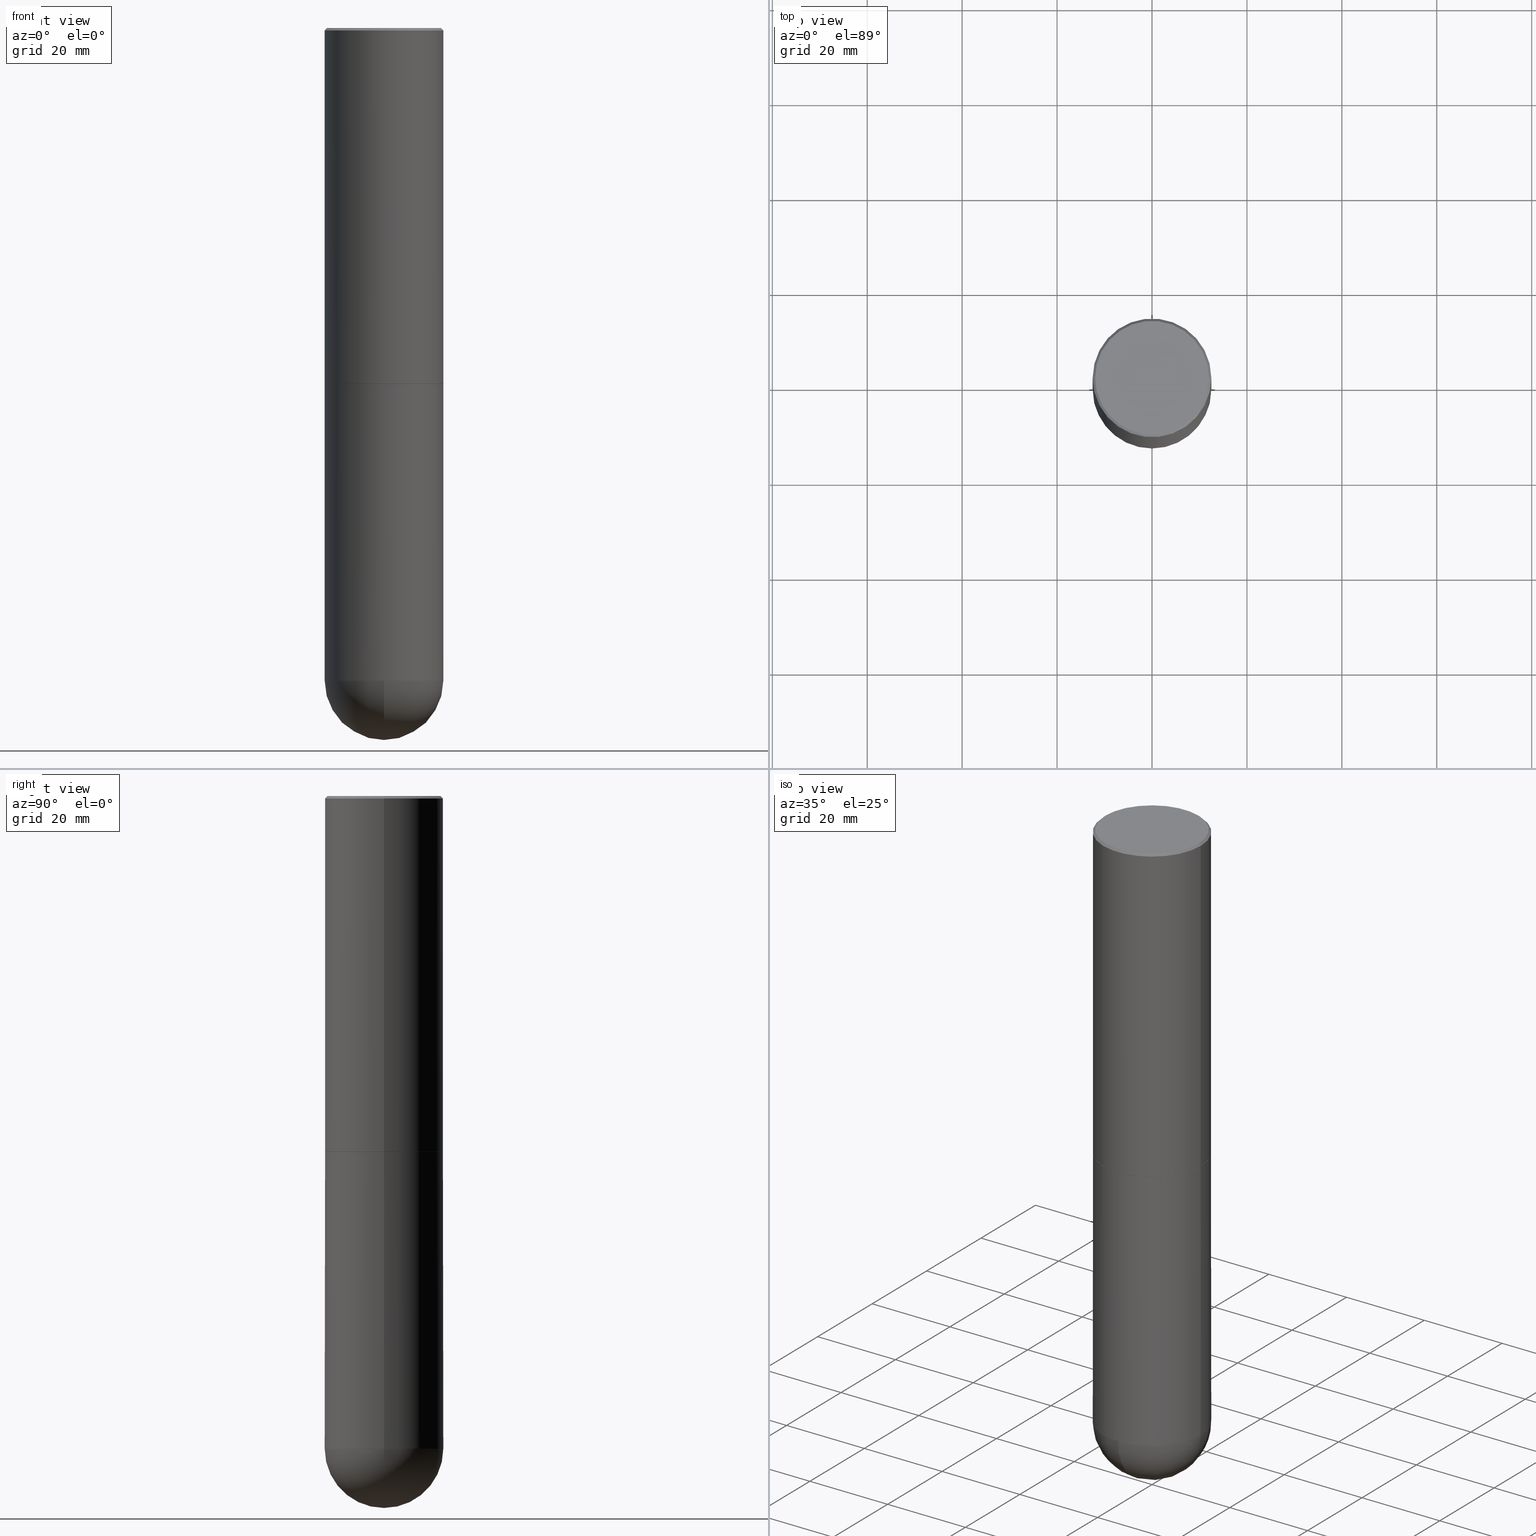
[diagram: canonical four-view strip — front | top / right | iso, engineering-drawing reading convention]
A machine part, canonical four-view strip (front | top / right | iso — engineering-drawing reading convention). The complete STEP part file that produces these views, byte-faithful:
ISO-10303-21;
HEADER;
FILE_DESCRIPTION (( 'STEP AP203' ),
    '1' );
FILE_NAME ('43196.STEP',
    '2024-04-10T11:42:41',
    ( '' ),
    ( '' ),
    'SwSTEP 2.0',
    'SolidWorks 2023',
    '' );
FILE_SCHEMA (( 'CONFIG_CONTROL_DESIGN' ));
ENDSEC;

DATA;
#1 = LOCAL_TIME ( 7, 42, 41.00000000000000000, #400 ) ;
#2 = CARTESIAN_POINT ( 'NONE',  ( 0.4921499999999999764, -1.804161880923764651E-14, -5.413349999999999440 ) ) ;
#3 = CARTESIAN_POINT ( 'NONE',  ( 4.890937612370299433E-31, -6.982962677686328587E-17, -0.02000000000000010797 ) ) ;
#4 = SPHERICAL_SURFACE ( 'NONE', #67, 0.4921500000000000874 ) ;
#5 = ORIENTED_EDGE ( 'NONE', *, *, #186, .F. ) ;
#6 = AXIS2_PLACEMENT_3D ( 'NONE', #256, #188, #91 ) ;
#7 = FACE_OUTER_BOUND ( 'NONE', #245, .T. ) ;
#8 = ORIENTED_EDGE ( 'NONE', *, *, #94, .F. ) ;
#9 = EDGE_CURVE ( 'NONE', #215, #34, #157, .T. ) ;
#10 = CARTESIAN_POINT ( 'NONE',  ( 0.4921499999999999764, -1.374596203102545079E-14, -2.952700000000000102 ) ) ;
#11 = ORIENTED_EDGE ( 'NONE', *, *, #60, .T. ) ;
#12 = APPROVAL_STATUS ( 'not_yet_approved' ) ;
#13 = CARTESIAN_POINT ( 'NONE',  ( -3.496936074043201946E-15, -0.4921500000000192387, -5.413349999999997664 ) ) ;
#14 = AXIS2_PLACEMENT_3D ( 'NONE', #103, #308, #282 ) ;
#15 = DIRECTION ( 'NONE',  ( 0.000000000000000000, 0.000000000000000000, 1.000000000000000000 ) ) ;
#16 = DIRECTION ( 'NONE',  ( -1.000000000000000000, 6.982962677686265922E-15, -4.876176775795935793E-29 ) ) ;
#17 = DIRECTION ( 'NONE',  ( 1.000000000000000000, -6.982962677686266711E-15, 4.875605319575679544E-29 ) ) ;
#18 = DIRECTION ( 'NONE',  ( -2.445468806185136597E-29, 3.491481338843145583E-15, 1.000000000000000000 ) ) ;
#19 = ORIENTED_EDGE ( 'NONE', *, *, #9, .F. ) ;
#20 = EDGE_CURVE ( 'NONE', #111, #230, #24, .T. ) ;
#21 = CARTESIAN_POINT ( 'NONE',  ( 7.220735744022853640E-29, -1.030929694920215659E-14, -2.952700000000000546 ) ) ;
#22 = ORIENTED_EDGE ( 'NONE', *, *, #228, .T. ) ;
#23 = DATE_AND_TIME ( #236, #158 ) ;
#24 = CIRCLE ( 'NONE', #196, 0.4921500000000000319 ) ;
#25 = AXIS2_PLACEMENT_3D ( 'NONE', #310, #15, #144 ) ;
#26 = ORIENTED_EDGE ( 'NONE', *, *, #186, .T. ) ;
#27 = PRODUCT_RELATED_PRODUCT_CATEGORY ( 'detail', '', ( #266 ) ) ;
#28 = EDGE_CURVE ( 'NONE', #48, #238, #379, .T. ) ;
#29 = ORIENTED_EDGE ( 'NONE', *, *, #168, .F. ) ;
#30 = DIRECTION ( 'NONE',  ( -1.000000000000000000, 7.105427357601001070E-15, -4.926315508542082329E-29 ) ) ;
#31 = AXIS2_PLACEMENT_3D ( 'NONE', #101, #38, #319 ) ;
#32 = APPROVAL_PERSON_ORGANIZATION ( #216, #93, #368 ) ;
#33 = DIRECTION ( 'NONE',  ( 1.000000000000000000, -6.982962677686266711E-15, 4.876176775795935232E-29 ) ) ;
#34 = VERTEX_POINT ( 'NONE', #176 ) ;
#35 = DIRECTION ( 'NONE',  ( 6.982962677686266711E-15, 1.000000000000000000, -4.440675393541420887E-15 ) ) ;
#36 = AXIS2_PLACEMENT_3D ( 'NONE', #333, #389, #33 ) ;
#37 = PRODUCT_DEFINITION_FORMATION_WITH_SPECIFIED_SOURCE ( 'ANY', '', #266, .NOT_KNOWN. ) ;
#38 = DIRECTION ( 'NONE',  ( -2.445468806185136597E-29, 3.491481338843145583E-15, 1.000000000000000000 ) ) ;
#39 = VERTEX_POINT ( 'NONE', #43 ) ;
#40 = CARTESIAN_POINT ( 'NONE',  ( -0.4921499999999999764, -1.110801765337101547E-14, -2.952700000000000102 ) ) ;
#41 = COORDINATED_UNIVERSAL_TIME_OFFSET ( 5, 0, .BEHIND. ) ;
#42 = DIRECTION ( 'NONE',  ( 1.000000000000000000, -6.982962677686265922E-15, 4.876176775795935793E-29 ) ) ;
#43 = CARTESIAN_POINT ( 'NONE',  ( -0.4921499999999999764, -1.110801765337101862E-14, -5.413349999999999440 ) ) ;
#44 = CLOSED_SHELL ( 'NONE', ( #340, #367, #325, #292, #83 ) ) ;
#45 = DIRECTION ( 'NONE',  ( 1.000000000000000000, -6.982962677686265922E-15, 0.000000000000000000 ) ) ;
#46 = ORIENTED_EDGE ( 'NONE', *, *, #51, .T. ) ;
#47 = FACE_OUTER_BOUND ( 'NONE', #411, .T. ) ;
#48 = VERTEX_POINT ( 'NONE', #50 ) ;
#49 = CALENDAR_DATE ( 2024, 10, 4 ) ;
#50 = CARTESIAN_POINT ( 'NONE',  ( 0.4911499999999999755, -1.373897906834776478E-14, -2.952700000000000546 ) ) ;
#51 = EDGE_CURVE ( 'NONE', #76, #113, #317, .T. ) ;
#52 = APPROVAL_ROLE ( '' ) ;
#53 = AXIS2_PLACEMENT_3D ( 'NONE', #316, #272, #110 ) ;
#54 = DIRECTION ( 'NONE',  ( 0.7071067811865474617, -2.468850131082256666E-15, 0.7071067811865474617 ) ) ;
#55 = AXIS2_PLACEMENT_3D ( 'NONE', #295, #95, #385 ) ;
#56 = MANIFOLD_SOLID_BREP ( 'Body-Move/Copy2[2]', #359 ) ;
#57 = LINE ( 'NONE', #189, #332 ) ;
#58 = CARTESIAN_POINT ( 'NONE',  ( 7.220735744022852519E-29, -1.030929694920215502E-14, -2.952700000000000102 ) ) ;
#59 = CC_DESIGN_PERSON_AND_ORGANIZATION_ASSIGNMENT ( #371, #278, ( #328 ) ) ;
#60 = EDGE_CURVE ( 'NONE', #76, #48, #124, .T. ) ;
#61 = DIRECTION ( 'NONE',  ( -2.445468806185136597E-29, 3.491481338843145583E-15, 1.000000000000000000 ) ) ;
#62 = AXIS2_PLACEMENT_3D ( 'NONE', #375, #365, #344 ) ;
#63 = ORGANIZATION ( 'UNSPECIFIED', 'UNSPECIFIED', '' ) ;
#64 = DIRECTION ( 'NONE',  ( 1.000000000000000000, -6.982962677686265922E-15, 0.000000000000000000 ) ) ;
#65 = FACE_OUTER_BOUND ( 'NONE', #98, .T. ) ;
#66 = CARTESIAN_POINT ( 'NONE',  ( 7.218290275216666916E-29, -1.030580546786331359E-14, -2.951700000000000212 ) ) ;
#67 = AXIS2_PLACEMENT_3D ( 'NONE', #128, #335, #35 ) ;
#68 = UNCERTAINTY_MEASURE_WITH_UNIT (LENGTH_MEASURE( 1.000000000000000082E-05 ), #204, 'distance_accuracy_value', 'NONE');
#69 = CC_DESIGN_SECURITY_CLASSIFICATION ( #399, ( #37 ) ) ;
#70 = ORIENTED_EDGE ( 'NONE', *, *, #51, .F. ) ;
#71 = CARTESIAN_POINT ( 'NONE',  ( -0.4921500000000003094, -1.690881473276752982E-15, -2.951700000000000212 ) ) ;
#72 = ORIENTED_EDGE ( 'NONE', *, *, #329, .F. ) ;
#73 = EDGE_CURVE ( 'NONE', #230, #111, #77, .T. ) ;
#74 = DATE_AND_TIME ( #49, #90 ) ;
#75 = DIRECTION ( 'NONE',  ( -2.445468806185136877E-29, 3.491481338843145188E-15, 1.000000000000000000 ) ) ;
#76 = VERTEX_POINT ( 'NONE', #135 ) ;
#77 = CIRCLE ( 'NONE', #336, 0.4921500000000000319 ) ;
#78 = APPROVAL_STATUS ( 'not_yet_approved' ) ;
#79 = DIRECTION ( 'NONE',  ( -2.445468806185136597E-29, 3.491481338843145583E-15, 1.000000000000000000 ) ) ;
#80 = VERTEX_POINT ( 'NONE', #40 ) ;
#81 = PERSON_AND_ORGANIZATION_ROLE ( 'design_supplier' ) ;
#82 = CARTESIAN_POINT ( 'NONE',  ( 0.4911499999999999755, -1.373897906834776478E-14, -2.952700000000000546 ) ) ;
#83 = ADVANCED_FACE ( 'NONE', ( #237 ), #200, .T. ) ;
#84 = DATE_TIME_ROLE ( 'classification_date' ) ;
#85 = DIRECTION ( 'NONE',  ( 1.000000000000000000, -6.982962677686265922E-15, 0.000000000000000000 ) ) ;
#86 = AXIS2_PLACEMENT_3D ( 'NONE', #58, #61, #64 ) ;
#87 = CARTESIAN_POINT ( 'NONE',  ( -1.461391980069309186E-45, 2.086480438532628324E-31, 5.975917486140581337E-17 ) ) ;
#88 = CARTESIAN_POINT ( 'NONE',  ( 1.323817856196230713E-28, -1.890061050562653856E-14, -5.413349999999999440 ) ) ;
#89 = AXIS2_PLACEMENT_3D ( 'NONE', #299, #30, #362 ) ;
#90 = LOCAL_TIME ( 7, 42, 41.00000000000000000, #274 ) ;
#91 = DIRECTION ( 'NONE',  ( 1.000000000000000000, -6.982962677686265922E-15, 0.000000000000000000 ) ) ;
#92 = CARTESIAN_POINT ( 'NONE',  ( 0.4921500000000000319, -3.446223716380123138E-15, -0.02000000000000010797 ) ) ;
#93 = APPROVAL ( #12, 'UNSPECIFIED' ) ;
#94 = EDGE_CURVE ( 'NONE', #115, #250, #191, .T. ) ;
#95 = DIRECTION ( 'NONE',  ( -2.445468806185136597E-29, 3.491481338843145583E-15, 1.000000000000000000 ) ) ;
#96 = FACE_OUTER_BOUND ( 'NONE', #302, .T. ) ;
#97 = DIRECTION ( 'NONE',  ( 1.000000000000000000, -6.982962677686265922E-15, 0.000000000000000000 ) ) ;
#98 = EDGE_LOOP ( 'NONE', ( #138, #352, #133, #262, #306 ) ) ;
#99 = CIRCLE ( 'NONE', #6, 0.4921499999999999764 ) ;
#100 = FACE_OUTER_BOUND ( 'NONE', #309, .T. ) ;
#101 = CARTESIAN_POINT ( 'NONE',  ( 7.220735744022853640E-29, -1.030929694920215659E-14, -2.952700000000000546 ) ) ;
#102 = PRODUCT_DEFINITION_SHAPE ( 'NONE', 'NONE',  #328 ) ;
#103 = CARTESIAN_POINT ( 'NONE',  ( 0.000000000000000000, 0.000000000000000000, 0.000000000000000000 ) ) ;
#104 = VECTOR ( 'NONE', #75, 39.37007874015748143 ) ;
#105 = APPROVAL_PERSON_ORGANIZATION ( #350, #155, #248 ) ;
#106 = FACE_OUTER_BOUND ( 'NONE', #276, .T. ) ;
#107 = EDGE_CURVE ( 'NONE', #215, #111, #147, .T. ) ;
#108 = CARTESIAN_POINT ( 'NONE',  ( -0.4921500000000000319, 3.366835455046432873E-15, -0.02000000000000010797 ) ) ;
#109 = ORIENTED_EDGE ( 'NONE', *, *, #219, .F. ) ;
#110 = DIRECTION ( 'NONE',  ( 1.000000000000000000, -6.982962677686264344E-15, 0.000000000000000000 ) ) ;
#111 = VERTEX_POINT ( 'NONE', #108 ) ;
#112 = AXIS2_PLACEMENT_3D ( 'NONE', #88, #223, #360 ) ;
#113 = VERTEX_POINT ( 'NONE', #71 ) ;
#114 =( NAMED_UNIT ( * ) SI_UNIT ( $, .STERADIAN. ) SOLID_ANGLE_UNIT ( ) );
#115 = VERTEX_POINT ( 'NONE', #13 ) ;
#116 = SHAPE_DEFINITION_REPRESENTATION ( #102, #307 ) ;
#117 = ORIENTED_EDGE ( 'NONE', *, *, #73, .T. ) ;
#118 = APPROVAL_DATE_TIME ( #152, #93 ) ;
#119 = LOCAL_TIME ( 7, 42, 41.00000000000000000, #243 ) ;
#120 = ADVANCED_FACE ( 'NONE', ( #311 ), #222, .T. ) ;
#121 = CARTESIAN_POINT ( 'NONE',  ( 0.4921500000000000319, -3.446223716380123138E-15, -0.02000000000000010797 ) ) ;
#122 = CARTESIAN_POINT ( 'NONE',  ( -0.4721499999999999031, 3.331920641658001618E-15, 5.975917486138264058E-17 ) ) ;
#123 = ADVANCED_FACE ( 'NONE', ( #134 ), #165, .F. ) ;
#124 = CIRCLE ( 'NONE', #264, 0.4911499999999999755 ) ;
#125 = AXIS2_PLACEMENT_3D ( 'NONE', #268, #225, #356 ) ;
#126 = DIRECTION ( 'NONE',  ( 0.7071067811865469066, -7.319954787623254468E-15, -0.7071067811865482389 ) ) ;
#127 = DIRECTION ( 'NONE',  ( 1.000000000000000000, -6.982962677686265922E-15, 4.876176775795935793E-29 ) ) ;
#128 = CARTESIAN_POINT ( 'NONE',  ( 1.290705878404842200E-28, -1.937479287376659043E-14, -5.413349999999999440 ) ) ;
#129 = ORIENTED_EDGE ( 'NONE', *, *, #242, .F. ) ;
#130 = CONICAL_SURFACE ( 'NONE', #376, 0.4911499999999999755, 0.7853981633974482790 ) ;
#131 = EDGE_CURVE ( 'NONE', #48, #76, #234, .T. ) ;
#132 = CARTESIAN_POINT ( 'NONE',  ( 3.436665081823426728E-15, 0.4921499999999808250, -5.413350000000002105 ) ) ;
#133 = ORIENTED_EDGE ( 'NONE', *, *, #354, .F. ) ;
#134 = FACE_OUTER_BOUND ( 'NONE', #370, .T. ) ;
#135 = CARTESIAN_POINT ( 'NONE',  ( -0.4911499999999999755, -6.814167848168200725E-15, -2.952700000000000546 ) ) ;
#136 = CC_DESIGN_DATE_AND_TIME_ASSIGNMENT ( #74, #84, ( #399 ) ) ;
#137 = ADVANCED_FACE ( 'NONE', ( #244 ), #394, .T. ) ;
#138 = ORIENTED_EDGE ( 'NONE', *, *, #242, .T. ) ;
#139 = AXIS2_PLACEMENT_3D ( 'NONE', #205, #18, #45 ) ;
#140 = APPLICATION_PROTOCOL_DEFINITION ( 'international standard', 'config_control_design', 1994, #142 ) ;
#141 = DIRECTION ( 'NONE',  ( 1.000000000000000000, -6.982962677686265922E-15, 4.876176775795935793E-29 ) ) ;
#142 = APPLICATION_CONTEXT ( 'configuration controlled 3d designs of mechanical parts and assemblies' ) ;
#143 = ORIENTED_EDGE ( 'NONE', *, *, #361, .F. ) ;
#144 = DIRECTION ( 'NONE',  ( 1.000000000000000000, 0.000000000000000000, 0.000000000000000000 ) ) ;
#145 = DIRECTION ( 'NONE',  ( -2.445468806185136597E-29, 3.491481338843145583E-15, 1.000000000000000000 ) ) ;
#146 = DIRECTION ( 'NONE',  ( -2.445468806185136597E-29, 3.491481338843145583E-15, 1.000000000000000000 ) ) ;
#147 = LINE ( 'NONE', #175, #291 ) ;
#148 = EDGE_LOOP ( 'NONE', ( #166, #377 ) ) ;
#149 = AXIS2_PLACEMENT_3D ( 'NONE', #226, #357, #227 ) ;
#150 = PERSON_AND_ORGANIZATION ( #267, #63 ) ;
#151 = ORIENTED_EDGE ( 'NONE', *, *, #219, .T. ) ;
#152 = DATE_AND_TIME ( #185, #1 ) ;
#153 = ORIENTED_EDGE ( 'NONE', *, *, #20, .F. ) ;
#154 = EDGE_CURVE ( 'NONE', #34, #215, #364, .T. ) ;
#155 = APPROVAL ( #78, 'UNSPECIFIED' ) ;
#156 = DIRECTION ( 'NONE',  ( -2.445468806185136597E-29, 3.491481338843145583E-15, 1.000000000000000000 ) ) ;
#157 = CIRCLE ( 'NONE', #174, 0.4721499999999999031 ) ;
#158 = LOCAL_TIME ( 7, 42, 41.00000000000000000, #41 ) ;
#159 = DIRECTION ( 'NONE',  ( -1.000000000000000000, 6.982962677686265922E-15, 0.000000000000000000 ) ) ;
#160 = ORIENTED_EDGE ( 'NONE', *, *, #412, .T. ) ;
#161 = LINE ( 'NONE', #92, #355 ) ;
#162 = ADVANCED_FACE ( 'NONE', ( #106 ), #369, .F. ) ;
#163 = CARTESIAN_POINT ( 'NONE',  ( 0.4921499999999999764, -3.436665081823295777E-15, 2.399810400207969603E-29 ) ) ;
#164 = CIRCLE ( 'NONE', #62, 0.4921500000000000874 ) ;
#165 = PLANE ( 'NONE',  #331 ) ;
#166 = ORIENTED_EDGE ( 'NONE', *, *, #354, .T. ) ;
#167 = CC_DESIGN_PERSON_AND_ORGANIZATION_ASSIGNMENT ( #214, #271, ( #399 ) ) ;
#168 = EDGE_CURVE ( 'NONE', #250, #351, #187, .T. ) ;
#169 = CARTESIAN_POINT ( 'NONE',  ( 0.000000000000000000, 0.000000000000000000, 0.000000000000000000 ) ) ;
#170 = ORIENTED_EDGE ( 'NONE', *, *, #192, .F. ) ;
#171 =( NAMED_UNIT ( * ) PLANE_ANGLE_UNIT ( ) SI_UNIT ( $, .RADIAN. ) );
#172 = DIRECTION ( 'NONE',  ( -2.445468806185136597E-29, 3.491481338843145583E-15, 1.000000000000000000 ) ) ;
#173 = EDGE_LOOP ( 'NONE', ( #170, #343, #109, #129 ) ) ;
#174 = AXIS2_PLACEMENT_3D ( 'NONE', #87, #247, #17 ) ;
#175 = CARTESIAN_POINT ( 'NONE',  ( -0.4921500000000000319, 3.366835455046432873E-15, -0.02000000000000010797 ) ) ;
#176 = CARTESIAN_POINT ( 'NONE',  ( 0.4721499999999999031, -3.342703923013975369E-15, 5.975917486142903546E-17 ) ) ;
#177 = PERSON_AND_ORGANIZATION ( #267, #63 ) ;
#178 = DIRECTION ( 'NONE',  ( -2.445468806185136597E-29, 3.491481338843145583E-15, 1.000000000000000000 ) ) ;
#179 = ORIENTED_EDGE ( 'NONE', *, *, #28, .T. ) ;
#180 = PERSON_AND_ORGANIZATION_ROLE ( 'design_owner' ) ;
#181 = VERTEX_POINT ( 'NONE', #10 ) ;
#182 = AXIS2_PLACEMENT_3D ( 'NONE', #305, #398, #404 ) ;
#183 = CONICAL_SURFACE ( 'NONE', #407, 0.4921500000000000319, 0.7853981633974473908 ) ;
#184 = CARTESIAN_POINT ( 'NONE',  ( 7.220735744022853640E-29, -1.030929694920215659E-14, -2.952700000000000546 ) ) ;
#185 = CALENDAR_DATE ( 2024, 10, 4 ) ;
#186 = EDGE_CURVE ( 'NONE', #238, #230, #233, .T. ) ;
#187 = CIRCLE ( 'NONE', #294, 0.4921499999999999764 ) ;
#188 = DIRECTION ( 'NONE',  ( -2.445468806185136597E-29, 3.491481338843145583E-15, 1.000000000000000000 ) ) ;
#189 = CARTESIAN_POINT ( 'NONE',  ( -0.4921500000000001984, 3.496936074043334475E-15, -2.420853904668952630E-29 ) ) ;
#190 = DIRECTION ( 'NONE',  ( -1.000000000000000000, 6.982962677686265922E-15, -4.876176775795935793E-29 ) ) ;
#191 = CIRCLE ( 'NONE', #139, 0.4921499999999999764 ) ;
#192 = EDGE_CURVE ( 'NONE', #206, #351, #164, .T. ) ;
#193 = DIRECTION ( 'NONE',  ( -2.445468806185136877E-29, 3.491481338843145188E-15, 1.000000000000000000 ) ) ;
#194 = CARTESIAN_POINT ( 'NONE',  ( 7.220735744022852519E-29, -1.030929694920215502E-14, -2.952700000000000102 ) ) ;
#195 = DIRECTION ( 'NONE',  ( -2.445468806185136597E-29, 3.491481338843145583E-15, 1.000000000000000000 ) ) ;
#196 = AXIS2_PLACEMENT_3D ( 'NONE', #346, #146, #85 ) ;
#197 = ORIENTED_EDGE ( 'NONE', *, *, #60, .F. ) ;
#198 = VECTOR ( 'NONE', #193, 39.37007874015748143 ) ;
#199 = EDGE_CURVE ( 'NONE', #113, #238, #312, .T. ) ;
#200 = CYLINDRICAL_SURFACE ( 'NONE', #207, 0.4921499999999999764 ) ;
#201 = CARTESIAN_POINT ( 'NONE',  ( 4.890937612370299433E-31, -6.982962677686328587E-17, -0.02000000000000010797 ) ) ;
#202 = ORIENTED_EDGE ( 'NONE', *, *, #199, .T. ) ;
#203 = APPLICATION_CONTEXT ( 'configuration controlled 3d designs of mechanical parts and assemblies' ) ;
#204 =( CONVERSION_BASED_UNIT ( 'INCH', #341 ) LENGTH_UNIT ( ) NAMED_UNIT ( #221 ) );
#205 = CARTESIAN_POINT ( 'NONE',  ( 1.323817856196230713E-28, -1.890061050562653856E-14, -5.413349999999999440 ) ) ;
#206 = VERTEX_POINT ( 'NONE', #348 ) ;
#207 = AXIS2_PLACEMENT_3D ( 'NONE', #169, #178, #42 ) ;
#208 = PERSON_AND_ORGANIZATION_ROLE ( 'creator' ) ;
#209 = CC_DESIGN_APPROVAL ( #93, ( #399 ) ) ;
#210 = DIRECTION ( 'NONE',  ( 1.000000000000000000, -6.982962677686265922E-15, 0.000000000000000000 ) ) ;
#211 = MANIFOLD_SOLID_BREP ( 'Body-Move/Copy2[1]', #44 ) ;
#212 = ADVANCED_FACE ( 'NONE', ( #47 ), #130, .T. ) ;
#213 = ORIENTED_EDGE ( 'NONE', *, *, #28, .F. ) ;
#214 = PERSON_AND_ORGANIZATION ( #267, #63 ) ;
#215 = VERTEX_POINT ( 'NONE', #122 ) ;
#216 = PERSON_AND_ORGANIZATION ( #267, #63 ) ;
#217 = ORIENTED_EDGE ( 'NONE', *, *, #192, .T. ) ;
#218 = CC_DESIGN_PERSON_AND_ORGANIZATION_ASSIGNMENT ( #177, #81, ( #37 ) ) ;
#219 = EDGE_CURVE ( 'NONE', #39, #115, #99, .T. ) ;
#220 = AXIS2_PLACEMENT_3D ( 'NONE', #300, #156, #127 ) ;
#221 = DIMENSIONAL_EXPONENTS ( 1.000000000000000000, 0.000000000000000000, 0.000000000000000000, 0.000000000000000000, 0.000000000000000000, 0.000000000000000000, 0.000000000000000000 ) ;
#222 = CONICAL_SURFACE ( 'NONE', #31, 0.4911499999999999755, 0.7853981633974482790 ) ;
#223 = DIRECTION ( 'NONE',  ( -2.445468806185136597E-29, 3.491481338843145583E-15, 1.000000000000000000 ) ) ;
#224 =( GEOMETRIC_REPRESENTATION_CONTEXT ( 3 ) GLOBAL_UNCERTAINTY_ASSIGNED_CONTEXT ( ( #68 ) ) GLOBAL_UNIT_ASSIGNED_CONTEXT ( ( #204, #171, #114 ) ) REPRESENTATION_CONTEXT ( 'NONE', 'WORKASPACE' ) );
#225 = DIRECTION ( 'NONE',  ( 2.445468806185136597E-29, -3.491481338843145583E-15, -1.000000000000000000 ) ) ;
#226 = CARTESIAN_POINT ( 'NONE',  ( 1.290705878404842200E-28, -1.937479287376659043E-14, -5.413349999999999440 ) ) ;
#227 = DIRECTION ( 'NONE',  ( 6.982962677686266711E-15, 1.000000000000000000, -4.440675393541420887E-15 ) ) ;
#228 = EDGE_CURVE ( 'NONE', #238, #113, #246, .T. ) ;
#229 = CARTESIAN_POINT ( 'NONE',  ( -0.4921499999999999764, 3.496936074043332897E-15, -2.420853904668951509E-29 ) ) ;
#230 = VERTEX_POINT ( 'NONE', #121 ) ;
#231 = DIRECTION ( 'NONE',  ( 2.438088387897960049E-29, -3.491481338843145188E-15, -1.000000000000000000 ) ) ;
#232 = DIRECTION ( 'NONE',  ( -2.438088387897960049E-29, 3.491481338843145188E-15, 1.000000000000000000 ) ) ;
#233 = LINE ( 'NONE', #372, #104 ) ;
#234 = CIRCLE ( 'NONE', #53, 0.4911499999999999755 ) ;
#235 = CC_DESIGN_APPROVAL ( #286, ( #328 ) ) ;
#236 = CALENDAR_DATE ( 2024, 10, 4 ) ;
#237 = FACE_OUTER_BOUND ( 'NONE', #313, .T. ) ;
#238 = VERTEX_POINT ( 'NONE', #254 ) ;
#239 = APPROVAL_STATUS ( 'not_yet_approved' ) ;
#240 = DIRECTION ( 'NONE',  ( 2.438088387897960049E-29, -3.491481338843145188E-15, -1.000000000000000000 ) ) ;
#241 = ORIENTED_EDGE ( 'NONE', *, *, #154, .F. ) ;
#242 = EDGE_CURVE ( 'NONE', #351, #39, #304, .T. ) ;
#243 = COORDINATED_UNIVERSAL_TIME_OFFSET ( 5, 0, .BEHIND. ) ;
#244 = FACE_OUTER_BOUND ( 'NONE', #373, .T. ) ;
#245 = EDGE_LOOP ( 'NONE', ( #241, #270, #117, #349 ) ) ;
#246 = CIRCLE ( 'NONE', #55, 0.4921500000000003094 ) ;
#247 = DIRECTION ( 'NONE',  ( -2.445468806185136597E-29, 3.491481338843145583E-15, 1.000000000000000000 ) ) ;
#248 = APPROVAL_ROLE ( '' ) ;
#249 = CC_DESIGN_PERSON_AND_ORGANIZATION_ASSIGNMENT ( #406, #208, ( #37 ) ) ;
#250 = VERTEX_POINT ( 'NONE', #2 ) ;
#251 = ADVANCED_FACE ( 'NONE', ( #387 ), #392, .T. ) ;
#252 = ORIENTED_EDGE ( 'NONE', *, *, #73, .F. ) ;
#253 = VECTOR ( 'NONE', #303, 39.37007874015748143 ) ;
#254 = CARTESIAN_POINT ( 'NONE',  ( 0.4921500000000003094, -1.374247054968661252E-14, -2.951700000000000212 ) ) ;
#255 = VECTOR ( 'NONE', #410, 39.37007874015748854 ) ;
#256 = CARTESIAN_POINT ( 'NONE',  ( 1.323817856196230713E-28, -1.890061050562653856E-14, -5.413349999999999440 ) ) ;
#257 = AXIS2_PLACEMENT_3D ( 'NONE', #259, #231, #190 ) ;
#258 = CYLINDRICAL_SURFACE ( 'NONE', #220, 0.4921499999999999764 ) ;
#259 = CARTESIAN_POINT ( 'NONE',  ( 3.436665081823367957E-15, 0.4921499999999896513, -2.952700000000001435 ) ) ;
#260 = EDGE_CURVE ( 'NONE', #34, #230, #161, .T. ) ;
#261 = SPHERICAL_SURFACE ( 'NONE', #149, 0.4921500000000000874 ) ;
#262 = ORIENTED_EDGE ( 'NONE', *, *, #384, .F. ) ;
#263 = DIRECTION ( 'NONE',  ( 2.445468806185136597E-29, -3.491481338843145583E-15, -1.000000000000000000 ) ) ;
#264 = AXIS2_PLACEMENT_3D ( 'NONE', #184, #145, #337 ) ;
#265 = ORIENTED_EDGE ( 'NONE', *, *, #94, .T. ) ;
#266 = PRODUCT ( '43196', '43196', '', ( #347 ) ) ;
#267 = PERSON ( 'UNSPECIFIED', 'UNSPECIFIED', 'UNSPECIFIED', ('UNSPECIFIED'), ('UNSPECIFIED'), ('UNSPECIFIED') ) ;
#268 = CARTESIAN_POINT ( 'NONE',  ( 4.890937612370299433E-31, -6.982962677686328587E-17, -0.02000000000000010797 ) ) ;
#269 = DIRECTION ( 'NONE',  ( -2.445468806185136597E-29, 3.491481338843145583E-15, 1.000000000000000000 ) ) ;
#270 = ORIENTED_EDGE ( 'NONE', *, *, #260, .T. ) ;
#271 = PERSON_AND_ORGANIZATION_ROLE ( 'classification_officer' ) ;
#272 = DIRECTION ( 'NONE',  ( -2.445468806185136597E-29, 3.491481338843145583E-15, 1.000000000000000000 ) ) ;
#273 = ORIENTED_EDGE ( 'NONE', *, *, #9, .T. ) ;
#274 = COORDINATED_UNIVERSAL_TIME_OFFSET ( 5, 0, .BEHIND. ) ;
#275 = CARTESIAN_POINT ( 'NONE',  ( 1.323817856196230713E-28, -1.890061050562653856E-14, -5.413349999999999440 ) ) ;
#276 = EDGE_LOOP ( 'NONE', ( #283, #197 ) ) ;
#277 = CC_DESIGN_PERSON_AND_ORGANIZATION_ASSIGNMENT ( #409, #180, ( #266 ) ) ;
#278 = PERSON_AND_ORGANIZATION_ROLE ( 'creator' ) ;
#279 = DIRECTION ( 'NONE',  ( -0.7071067811865469066, 2.468850131082249961E-15, -0.7071067811865482389 ) ) ;
#280 = EDGE_LOOP ( 'NONE', ( #320, #46, #381, #213 ) ) ;
#281 = CALENDAR_DATE ( 2024, 10, 4 ) ;
#282 = DIRECTION ( 'NONE',  ( 1.000000000000000000, -6.982962677686266711E-15, 4.876176775795935232E-29 ) ) ;
#283 = ORIENTED_EDGE ( 'NONE', *, *, #131, .F. ) ;
#284 = CIRCLE ( 'NONE', #89, 0.4921500000000000874 ) ;
#285 = CC_DESIGN_APPROVAL ( #155, ( #37 ) ) ;
#286 = APPROVAL ( #239, 'UNSPECIFIED' ) ;
#287 = DATE_AND_TIME ( #281, #296 ) ;
#288 = EDGE_CURVE ( 'NONE', #206, #115, #284, .T. ) ;
#289 = CARTESIAN_POINT ( 'NONE',  ( -0.4911499999999999755, -6.819466302516424705E-15, -2.952700000000000546 ) ) ;
#290 = ORIENTED_EDGE ( 'NONE', *, *, #260, .F. ) ;
#291 = VECTOR ( 'NONE', #279, 39.37007874015748143 ) ;
#292 = ADVANCED_FACE ( 'NONE', ( #330 ), #358, .F. ) ;
#293 =( LENGTH_UNIT ( ) NAMED_UNIT ( * ) SI_UNIT ( $, .METRE. ) );
#294 = AXIS2_PLACEMENT_3D ( 'NONE', #275, #269, #401 ) ;
#295 = CARTESIAN_POINT ( 'NONE',  ( 7.218290275216666916E-29, -1.030580546786331359E-14, -2.951700000000000212 ) ) ;
#296 = LOCAL_TIME ( 7, 42, 41.00000000000000000, #318 ) ;
#297 = CC_DESIGN_DATE_AND_TIME_ASSIGNMENT ( #287, #397, ( #328 ) ) ;
#298 = ADVANCED_FACE ( 'NONE', ( #96 ), #183, .T. ) ;
#299 = CARTESIAN_POINT ( 'NONE',  ( 1.290705878404842200E-28, -1.937479287376659043E-14, -5.413349999999999440 ) ) ;
#300 = CARTESIAN_POINT ( 'NONE',  ( 0.000000000000000000, 0.000000000000000000, 0.000000000000000000 ) ) ;
#301 = LINE ( 'NONE', #163, #253 ) ;
#302 = EDGE_LOOP ( 'NONE', ( #290, #19, #382, #408 ) ) ;
#303 = DIRECTION ( 'NONE',  ( -2.445468806185136877E-29, 3.491481338843145188E-15, 1.000000000000000000 ) ) ;
#304 = CIRCLE ( 'NONE', #112, 0.4921499999999999764 ) ;
#305 = CARTESIAN_POINT ( 'NONE',  ( -1.461391980069309186E-45, 2.086480438532628324E-31, 5.975917486140581337E-17 ) ) ;
#306 = ORIENTED_EDGE ( 'NONE', *, *, #168, .T. ) ;
#307 = ADVANCED_BREP_SHAPE_REPRESENTATION ( '43196', ( #211, #56, #25 ), #224 ) ;
#308 = DIRECTION ( 'NONE',  ( -2.445468806185136597E-29, 3.491481338843145583E-15, 1.000000000000000000 ) ) ;
#309 = EDGE_LOOP ( 'NONE', ( #324, #217, #29, #8 ) ) ;
#310 = CARTESIAN_POINT ( 'NONE',  ( 0.000000000000000000, 0.000000000000000000, 0.000000000000000000 ) ) ;
#311 = FACE_OUTER_BOUND ( 'NONE', #280, .T. ) ;
#312 = CIRCLE ( 'NONE', #396, 0.4921500000000003094 ) ;
#313 = EDGE_LOOP ( 'NONE', ( #143, #151, #265, #405, #72 ) ) ;
#314 = APPROVAL_PERSON_ORGANIZATION ( #150, #286, #52 ) ;
#315 = APPLICATION_PROTOCOL_DEFINITION ( 'international standard', 'config_control_design', 1994, #203 ) ;
#316 = CARTESIAN_POINT ( 'NONE',  ( 7.220735744022853640E-29, -1.030929694920215659E-14, -2.952700000000000546 ) ) ;
#317 = LINE ( 'NONE', #289, #255 ) ;
#318 = COORDINATED_UNIVERSAL_TIME_OFFSET ( 5, 0, .BEHIND. ) ;
#319 = DIRECTION ( 'NONE',  ( 1.000000000000000000, -6.982962677686264344E-15, 0.000000000000000000 ) ) ;
#320 = ORIENTED_EDGE ( 'NONE', *, *, #131, .T. ) ;
#321 = CALENDAR_DATE ( 2024, 10, 4 ) ;
#322 = EDGE_LOOP ( 'NONE', ( #391, #202, #26, #153 ) ) ;
#323 = CONICAL_SURFACE ( 'NONE', #125, 0.4921500000000000319, 0.7853981633974473908 ) ;
#324 = ORIENTED_EDGE ( 'NONE', *, *, #288, .F. ) ;
#325 = ADVANCED_FACE ( 'NONE', ( #100 ), #261, .T. ) ;
#326 = AXIS2_PLACEMENT_3D ( 'NONE', #342, #232, #141 ) ;
#327 = DIRECTION ( 'NONE',  ( -2.445468806185136877E-29, 3.491481338843145188E-15, 1.000000000000000000 ) ) ;
#328 = PRODUCT_DEFINITION ( 'UNKNOWN', '', #37, #338 ) ;
#329 = EDGE_CURVE ( 'NONE', #80, #181, #386, .T. ) ;
#330 = FACE_OUTER_BOUND ( 'NONE', #148, .T. ) ;
#331 = AXIS2_PLACEMENT_3D ( 'NONE', #363, #240, #16 ) ;
#332 = VECTOR ( 'NONE', #327, 39.37007874015748143 ) ;
#333 = CARTESIAN_POINT ( 'NONE',  ( 0.000000000000000000, 0.000000000000000000, 0.000000000000000000 ) ) ;
#334 = FACE_OUTER_BOUND ( 'NONE', #173, .T. ) ;
#335 = DIRECTION ( 'NONE',  ( -1.000000000000000000, 6.982962677686266711E-15, -4.883557194083112901E-29 ) ) ;
#336 = AXIS2_PLACEMENT_3D ( 'NONE', #201, #172, #339 ) ;
#337 = DIRECTION ( 'NONE',  ( 1.000000000000000000, -6.982962677686264344E-15, 0.000000000000000000 ) ) ;
#338 = DESIGN_CONTEXT ( 'detailed design', #203, 'design' ) ;
#339 = DIRECTION ( 'NONE',  ( 1.000000000000000000, -6.982962677686265922E-15, 0.000000000000000000 ) ) ;
#340 = ADVANCED_FACE ( 'NONE', ( #65 ), #258, .T. ) ;
#341 = LENGTH_MEASURE_WITH_UNIT ( LENGTH_MEASURE( 0.02539999999999999897 ), #293 );
#342 = CARTESIAN_POINT ( 'NONE',  ( 7.220735744022853640E-29, -1.030929694920215659E-14, -2.952700000000000546 ) ) ;
#343 = ORIENTED_EDGE ( 'NONE', *, *, #288, .T. ) ;
#344 = DIRECTION ( 'NONE',  ( 6.982962677686265922E-15, 1.000000000000000000, 0.000000000000000000 ) ) ;
#345 = VECTOR ( 'NONE', #54, 39.37007874015748854 ) ;
#346 = CARTESIAN_POINT ( 'NONE',  ( 4.890937612370299433E-31, -6.982962677686328587E-17, -0.02000000000000010797 ) ) ;
#347 = MECHANICAL_CONTEXT ( 'NONE', #142, 'mechanical' ) ;
#348 = CARTESIAN_POINT ( 'NONE',  ( 1.413163976147341948E-28, -2.106298991856822883E-14, -5.905499999999999972 ) ) ;
#349 = ORIENTED_EDGE ( 'NONE', *, *, #107, .F. ) ;
#350 = PERSON_AND_ORGANIZATION ( #267, #63 ) ;
#351 = VERTEX_POINT ( 'NONE', #132 ) ;
#352 = ORIENTED_EDGE ( 'NONE', *, *, #361, .T. ) ;
#353 = CIRCLE ( 'NONE', #383, 0.4921499999999999764 ) ;
#354 = EDGE_CURVE ( 'NONE', #181, #80, #353, .T. ) ;
#355 = VECTOR ( 'NONE', #126, 39.37007874015748143 ) ;
#356 = DIRECTION ( 'NONE',  ( -1.000000000000000000, 6.982962677686265922E-15, 0.000000000000000000 ) ) ;
#357 = DIRECTION ( 'NONE',  ( -1.000000000000000000, 6.982962677686266711E-15, -4.883557194083112901E-29 ) ) ;
#358 = PLANE ( 'NONE',  #257 ) ;
#359 = CLOSED_SHELL ( 'NONE', ( #120, #137, #395, #298, #251, #212, #162, #123 ) ) ;
#360 = DIRECTION ( 'NONE',  ( 1.000000000000000000, -6.982962677686265922E-15, 0.000000000000000000 ) ) ;
#361 = EDGE_CURVE ( 'NONE', #39, #80, #393, .T. ) ;
#362 = DIRECTION ( 'NONE',  ( -7.105427357601001070E-15, -1.000000000000000000, 0.000000000000000000 ) ) ;
#363 = CARTESIAN_POINT ( 'NONE',  ( 3.297005828269569575E-15, 0.4721499999999999031, -1.618623326704087914E-15 ) ) ;
#364 = CIRCLE ( 'NONE', #182, 0.4721499999999999031 ) ;
#365 = DIRECTION ( 'NONE',  ( 1.000000000000000000, -6.982962677686265922E-15, 4.883557194083112340E-29 ) ) ;
#366 = ORIENTED_EDGE ( 'NONE', *, *, #199, .F. ) ;
#367 = ADVANCED_FACE ( 'NONE', ( #334 ), #4, .T. ) ;
#368 = APPROVAL_ROLE ( '' ) ;
#369 = PLANE ( 'NONE',  #326 ) ;
#370 = EDGE_LOOP ( 'NONE', ( #273, #402 ) ) ;
#371 = PERSON_AND_ORGANIZATION ( #267, #63 ) ;
#372 = CARTESIAN_POINT ( 'NONE',  ( 0.4921500000000001984, -3.436665081823297354E-15, 2.399810400207970443E-29 ) ) ;
#373 = EDGE_LOOP ( 'NONE', ( #22, #160, #252, #5 ) ) ;
#374 = APPROVAL_DATE_TIME ( #378, #286 ) ;
#375 = CARTESIAN_POINT ( 'NONE',  ( 1.290705878404842200E-28, -1.937479287376659043E-14, -5.413349999999999440 ) ) ;
#376 = AXIS2_PLACEMENT_3D ( 'NONE', #21, #195, #388 ) ;
#377 = ORIENTED_EDGE ( 'NONE', *, *, #329, .T. ) ;
#378 = DATE_AND_TIME ( #321, #119 ) ;
#379 = LINE ( 'NONE', #82, #345 ) ;
#380 = SECURITY_CLASSIFICATION_LEVEL ( 'unclassified' ) ;
#381 = ORIENTED_EDGE ( 'NONE', *, *, #228, .F. ) ;
#382 = ORIENTED_EDGE ( 'NONE', *, *, #107, .T. ) ;
#383 = AXIS2_PLACEMENT_3D ( 'NONE', #194, #390, #97 ) ;
#384 = EDGE_CURVE ( 'NONE', #250, #181, #301, .T. ) ;
#385 = DIRECTION ( 'NONE',  ( 1.000000000000000000, -6.982962677686265922E-15, 0.000000000000000000 ) ) ;
#386 = CIRCLE ( 'NONE', #86, 0.4921499999999999764 ) ;
#387 = FACE_OUTER_BOUND ( 'NONE', #322, .T. ) ;
#388 = DIRECTION ( 'NONE',  ( 1.000000000000000000, -6.982962677686264344E-15, 0.000000000000000000 ) ) ;
#389 = DIRECTION ( 'NONE',  ( -2.445468806185136597E-29, 3.491481338843145583E-15, 1.000000000000000000 ) ) ;
#390 = DIRECTION ( 'NONE',  ( -2.445468806185136597E-29, 3.491481338843145583E-15, 1.000000000000000000 ) ) ;
#391 = ORIENTED_EDGE ( 'NONE', *, *, #412, .F. ) ;
#392 = CYLINDRICAL_SURFACE ( 'NONE', #36, 0.4921500000000001984 ) ;
#393 = LINE ( 'NONE', #229, #198 ) ;
#394 = CYLINDRICAL_SURFACE ( 'NONE', #14, 0.4921500000000001984 ) ;
#395 = ADVANCED_FACE ( 'NONE', ( #7 ), #323, .T. ) ;
#396 = AXIS2_PLACEMENT_3D ( 'NONE', #66, #79, #210 ) ;
#397 = DATE_TIME_ROLE ( 'creation_date' ) ;
#398 = DIRECTION ( 'NONE',  ( -2.445468806185136597E-29, 3.491481338843145583E-15, 1.000000000000000000 ) ) ;
#399 = SECURITY_CLASSIFICATION ( '', '', #380 ) ;
#400 = COORDINATED_UNIVERSAL_TIME_OFFSET ( 5, 0, .BEHIND. ) ;
#401 = DIRECTION ( 'NONE',  ( 1.000000000000000000, -6.982962677686265922E-15, 0.000000000000000000 ) ) ;
#402 = ORIENTED_EDGE ( 'NONE', *, *, #154, .T. ) ;
#403 = APPROVAL_DATE_TIME ( #23, #155 ) ;
#404 = DIRECTION ( 'NONE',  ( 1.000000000000000000, -6.982962677686266711E-15, 4.875605319575679544E-29 ) ) ;
#405 = ORIENTED_EDGE ( 'NONE', *, *, #384, .T. ) ;
#406 = PERSON_AND_ORGANIZATION ( #267, #63 ) ;
#407 = AXIS2_PLACEMENT_3D ( 'NONE', #3, #263, #159 ) ;
#408 = ORIENTED_EDGE ( 'NONE', *, *, #20, .T. ) ;
#409 = PERSON_AND_ORGANIZATION ( #267, #63 ) ;
#410 = DIRECTION ( 'NONE',  ( -0.7071067811865474617, 7.493145998870352582E-15, 0.7071067811865474617 ) ) ;
#411 = EDGE_LOOP ( 'NONE', ( #70, #11, #179, #366 ) ) ;
#412 = EDGE_CURVE ( 'NONE', #113, #111, #57, .T. ) ;
ENDSEC;
END-ISO-10303-21;
